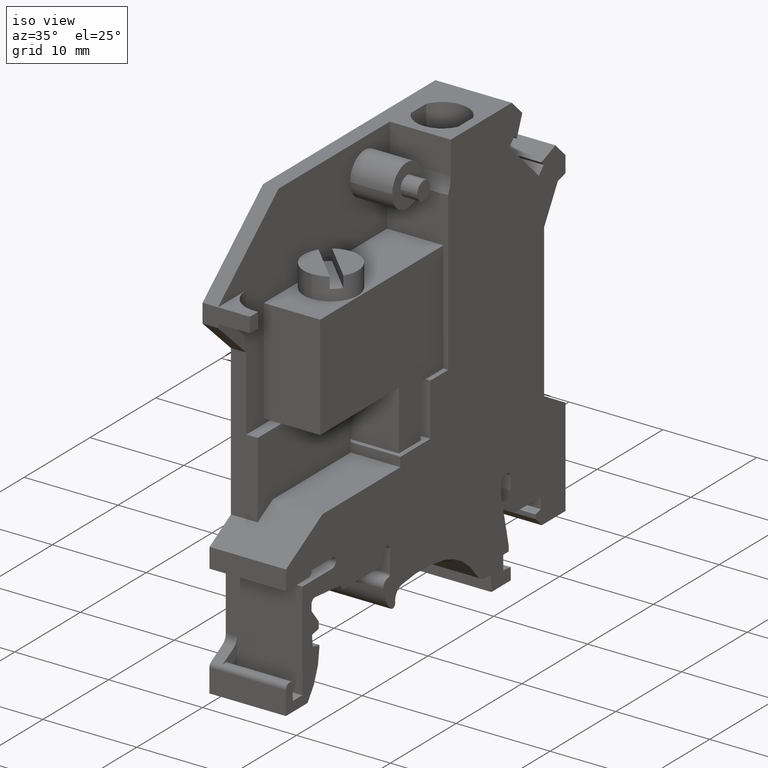
[diagram: clean part render]
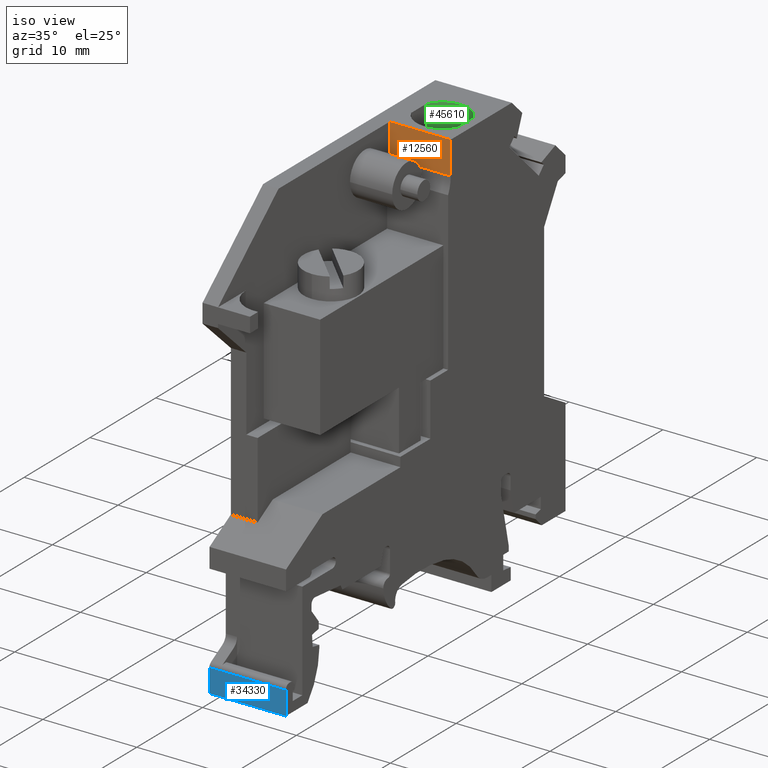
[diagram: same view with three faces highlighted in distinct colors, each labeled with its STEP entity id]
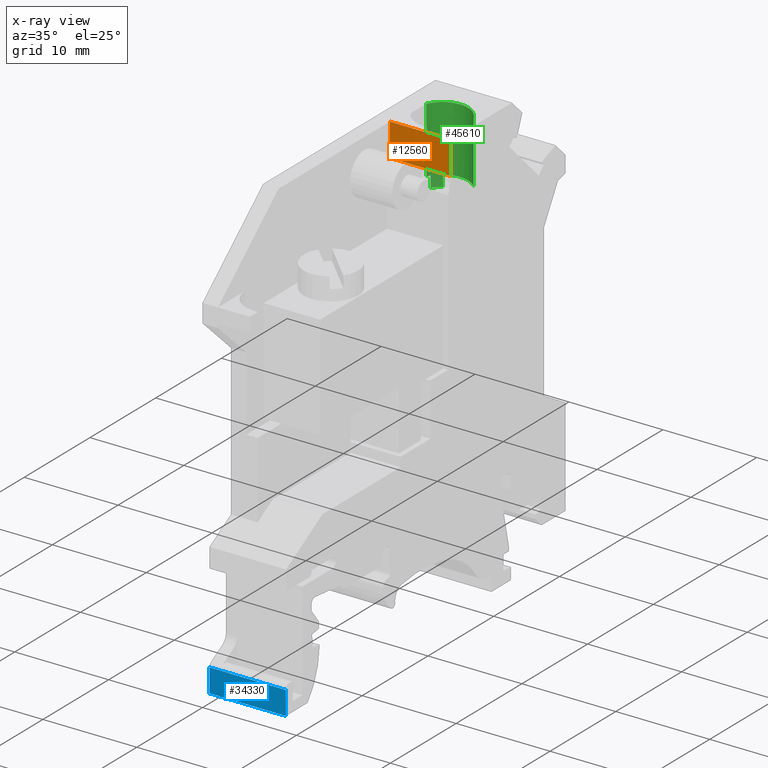
[diagram: x-ray of the same camera — body ghosted, the three highlighted faces saturated]
A machine part, iso view with three faces highlighted in distinct colors.
The next image is the same camera in x-ray (body ghosted, the three faces saturated) — at least one of them is partly hidden behind the body in this view.
Their STEP definitions:

[orange] entity #12560 — the highlighted planar face has unit normal (-0, -1, -0).
#12170=CARTESIAN_POINT('',(35.6291997327281,36.058658177701,10.15));
#12180=DIRECTION('',(-1.,-2.53765262771462E-16,-0.));
#12190=DIRECTION('',(-2.53765262771462E-16,1.,0.));
#12200=AXIS2_PLACEMENT_3D('',#12170,#12180,#12190);
#12210=PLANE('',#12200);
#12220=CARTESIAN_POINT('',(35.6291997327281,32.5586581777009,10.15));
#12230=DIRECTION('',(0.,0.,-1.));
#12240=VECTOR('',#12230,1.);
#12250=LINE('',#12220,#12240);
#12260=CARTESIAN_POINT('',(35.6291997327281,32.5586581777009,8.15));
#12270=VERTEX_POINT('',#12260);
#12280=CARTESIAN_POINT('',(35.6291997327281,32.5586581777009,1.65));
#12290=VERTEX_POINT('',#12280);
#12300=EDGE_CURVE('',#12270,#12290,#12250,.T.);
#12310=ORIENTED_EDGE('',*,*,#12300,.F.);
#12320=CARTESIAN_POINT('',(35.6291997327281,0.,1.65));
#12330=DIRECTION('',(-2.53765262771462E-16,1.,0.));
#12340=VECTOR('',#12330,1.);
#12350=LINE('',#12320,#12340);
#12360=CARTESIAN_POINT('',(35.6291997327281,36.058658177701,1.65));
#12370=VERTEX_POINT('',#12360);
#12380=EDGE_CURVE('',#12290,#12370,#12350,.T.);
#12390=ORIENTED_EDGE('',*,*,#12380,.F.);
#12400=CARTESIAN_POINT('',(35.6291997327281,36.058658177701,0.));
#12410=DIRECTION('',(0.,0.,1.));
#12420=VECTOR('',#12410,1.);
#12430=LINE('',#12400,#12420);
#12440=CARTESIAN_POINT('',(35.6291997327281,36.058658177701,8.15));
#12450=VERTEX_POINT('',#12440);
#12460=EDGE_CURVE('',#12370,#12450,#12430,.T.);
#12470=ORIENTED_EDGE('',*,*,#12460,.F.);
#12480=CARTESIAN_POINT('',(35.6291997327281,0.,8.15));
#12490=DIRECTION('',(-2.53765262771462E-16,1.,0.));
#12500=VECTOR('',#12490,1.);
#12510=LINE('',#12480,#12500);
#12520=EDGE_CURVE('',#12270,#12450,#12510,.T.);
#12530=ORIENTED_EDGE('',*,*,#12520,.T.);
#12540=EDGE_LOOP('',(#12530,#12470,#12390,#12310));
#12550=FACE_OUTER_BOUND('',#12540,.T.);
#12560=ADVANCED_FACE('',(#12550),#12210,.T.);

[blue] entity #34330 — the highlighted planar face has unit normal (0, -1, 0).
#2090=CARTESIAN_POINT('',(10.5591997327281,-7.34134182229906,0.));
#2100=VERTEX_POINT('',#2090);
#2130=CARTESIAN_POINT('',(10.5591997327281,-239.465655136521,0.));
#2140=DIRECTION('',(0.,1.,0.));
#2150=VECTOR('',#2140,1.);
#2160=LINE('',#2130,#2150);
#2170=CARTESIAN_POINT('',(10.5591997327281,-9.84134182229906,0.));
#2180=VERTEX_POINT('',#2170);
#2190=EDGE_CURVE('',#2180,#2100,#2160,.T.);
#25470=CARTESIAN_POINT('',(10.5591997327281,-9.84134182229906,0.));
#25480=DIRECTION('',(0.,0.,1.));
#25490=VECTOR('',#25480,1.);
#25500=LINE('',#25470,#25490);
#25510=CARTESIAN_POINT('',(10.5591997327281,-9.84134182229906,8.15));
#25520=VERTEX_POINT('',#25510);
#25530=EDGE_CURVE('',#2180,#25520,#25500,.T.);
#34100=CARTESIAN_POINT('',(10.5591997327281,-7.34134182229906,12.));
#34110=DIRECTION('',(-1.,0.,0.));
#34120=DIRECTION('',(0.,1.,0.));
#34130=AXIS2_PLACEMENT_3D('',#34100,#34110,#34120);
#34140=PLANE('',#34130);
#34150=ORIENTED_EDGE('',*,*,#25530,.T.);
#34160=ORIENTED_EDGE('',*,*,#2190,.F.);
#34170=CARTESIAN_POINT('',(10.5591997327281,-7.34134182229906,12.));
#34180=DIRECTION('',(0.,0.,-1.));
#34190=VECTOR('',#34180,1.);
#34200=LINE('',#34170,#34190);
#34210=CARTESIAN_POINT('',(10.5591997327281,-7.34134182229906,8.15));
#34220=VERTEX_POINT('',#34210);
#34230=EDGE_CURVE('',#34220,#2100,#34200,.T.);
#34240=ORIENTED_EDGE('',*,*,#34230,.T.);
#34250=CARTESIAN_POINT('',(10.5591997327281,0.,8.15));
#34260=DIRECTION('',(0.,1.,0.));
#34270=VECTOR('',#34260,1.);
#34280=LINE('',#34250,#34270);
#34290=EDGE_CURVE('',#25520,#34220,#34280,.T.);
#34300=ORIENTED_EDGE('',*,*,#34290,.T.);
#34310=EDGE_LOOP('',(#34300,#34240,#34160,#34150));
#34320=FACE_OUTER_BOUND('',#34310,.T.);
#34330=ADVANCED_FACE('',(#34320),#34140,.T.);

[green] entity #45610 — the highlighted cylindrical surface (edge-blend (fillet) strip) has radius 2.75 mm, axis along (0, 0, 1).
#14880=CARTESIAN_POINT('',(40.4748436564671,36.058658177701,7.15));
#14890=VERTEX_POINT('',#14880);
#14920=CARTESIAN_POINT('',(39.3291997327281,36.058658177701,4.65));
#14930=DIRECTION('',(0.,1.,0.));
#14940=DIRECTION('',(1.,0.,0.));
#14950=AXIS2_PLACEMENT_3D('',#14920,#14930,#14940);
#14960=CIRCLE('',#14950,2.75);
#14970=CARTESIAN_POINT('',(40.4748436564671,36.058658177701,2.15));
#14980=VERTEX_POINT('',#14970);
#14990=EDGE_CURVE('',#14890,#14980,#14960,.T.);
#43810=CARTESIAN_POINT('',(41.6233643507065,29.058658177701,
3.13365284132684));
#43820=VERTEX_POINT('',#43810);
#43850=CARTESIAN_POINT('',(39.3291997327281,29.058658177701,4.65));
#43860=DIRECTION('',(0.,1.,0.));
#43870=DIRECTION('',(1.,0.,0.));
#43880=AXIS2_PLACEMENT_3D('',#43850,#43860,#43870);
#43890=CIRCLE('',#43880,2.75);
#43900=CARTESIAN_POINT('',(40.4748436564671,29.058658177701,7.15));
#43910=VERTEX_POINT('',#43900);
#43920=EDGE_CURVE('',#43910,#43820,#43890,.T.);
#44150=CARTESIAN_POINT('',(40.4748436564671,36.058658177701,2.15));
#44160=DIRECTION('',(0.,-1.,0.));
#44170=VECTOR('',#44160,1.);
#44180=LINE('',#44150,#44170);
#44190=CARTESIAN_POINT('',(40.4748436564671,29.058658177701,2.15));
#44200=VERTEX_POINT('',#44190);
#44210=EDGE_CURVE('',#14980,#44200,#44180,.T.);
#45060=CARTESIAN_POINT('',(40.4748436564671,36.058658177701,7.15));
#45070=DIRECTION('',(0.,-1.,0.));
#45080=VECTOR('',#45070,1.);
#45090=LINE('',#45060,#45080);
#45100=EDGE_CURVE('',#14890,#43910,#45090,.T.);
#45230=CARTESIAN_POINT('',(39.3291997327281,36.058658177701,4.65));
#45240=DIRECTION('',(0.,1.,0.));
#45250=DIRECTION('',(1.,0.,0.));
#45260=AXIS2_PLACEMENT_3D('',#45230,#45240,#45250);
#45270=CYLINDRICAL_SURFACE('',#45260,2.75);
#45280=ORIENTED_EDGE('',*,*,#45100,.F.);
#45290=ORIENTED_EDGE('',*,*,#43920,.F.);
#45300=CARTESIAN_POINT('',(41.6233643507065,29.058658177701,
3.13365284132684));
#45310=DIRECTION('',(0.,-1.,0.));
#45320=VECTOR('',#45310,1.);
#45330=LINE('',#45300,#45320);
#45340=CARTESIAN_POINT('',(41.6233643507065,27.858658177701,
3.13365284132684));
#45350=VERTEX_POINT('',#45340);
#45360=EDGE_CURVE('',#43820,#45350,#45330,.T.);
#45370=ORIENTED_EDGE('',*,*,#45360,.F.);
#45380=CARTESIAN_POINT('',(39.3291997327281,27.858658177701,4.65));
#45390=DIRECTION('',(0.,1.,0.));
#45400=DIRECTION('',(1.,0.,0.));
#45410=AXIS2_PLACEMENT_3D('',#45380,#45390,#45400);
#45420=CIRCLE('',#45410,2.75);
#45430=CARTESIAN_POINT('',(40.8455468914013,27.858658177701,
2.35583538202163));
#45440=VERTEX_POINT('',#45430);
#45450=EDGE_CURVE('',#45350,#45440,#45420,.T.);
#45460=ORIENTED_EDGE('',*,*,#45450,.F.);
#45470=CARTESIAN_POINT('',(40.8455468914013,29.058658177701,
2.35583538202163));
#45480=DIRECTION('',(0.,-1.,0.));
#45490=VECTOR('',#45480,1.);
#45500=LINE('',#45470,#45490);
#45510=CARTESIAN_POINT('',(40.8455468914013,29.058658177701,
2.35583538202163));
#45520=VERTEX_POINT('',#45510);
#45530=EDGE_CURVE('',#45520,#45440,#45500,.T.);
#45540=ORIENTED_EDGE('',*,*,#45530,.T.);
#45550=EDGE_CURVE('',#45520,#44200,#43890,.T.);
#45560=ORIENTED_EDGE('',*,*,#45550,.F.);
#45570=ORIENTED_EDGE('',*,*,#44210,.T.);
#45580=ORIENTED_EDGE('',*,*,#14990,.T.);
#45590=EDGE_LOOP('',(#45580,#45570,#45560,#45540,#45460,#45370,#45290,
#45280));
#45600=FACE_OUTER_BOUND('',#45590,.T.);
#45610=ADVANCED_FACE('',(#45600),#45270,.F.);